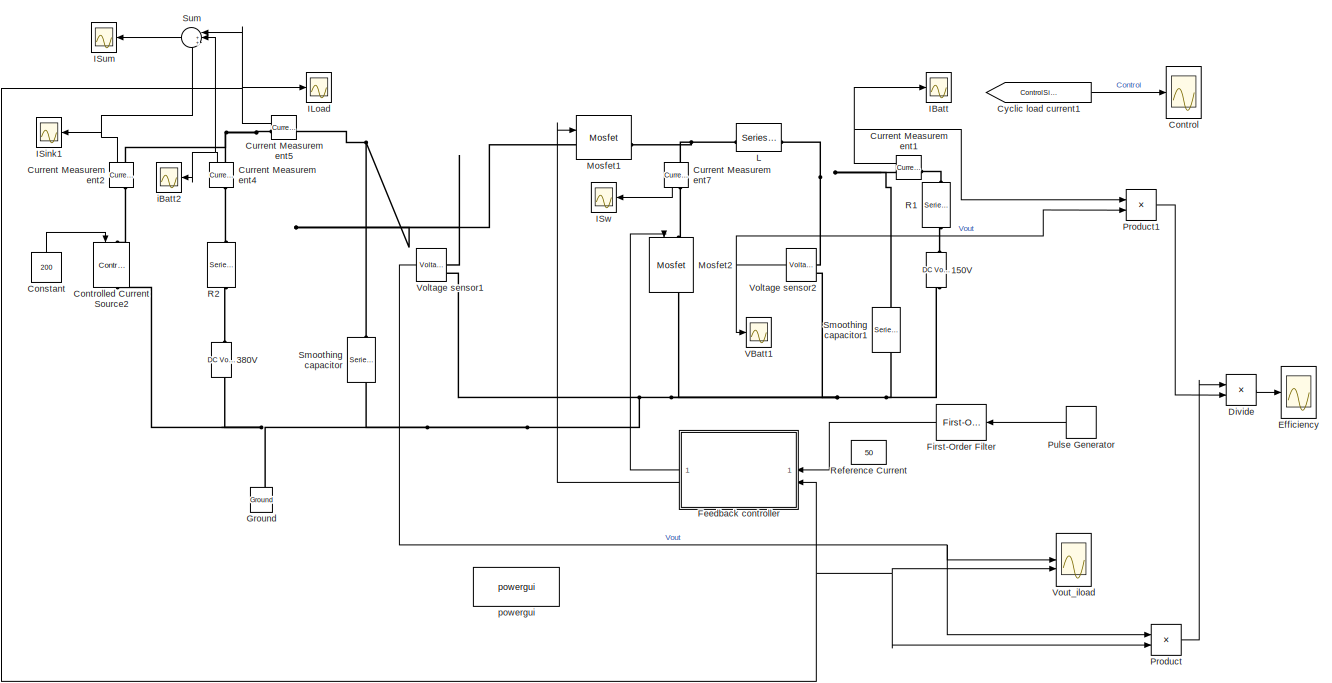
[diagram: root canvas - part 1/2, center side, full height]
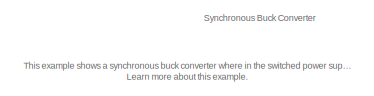
[diagram: root canvas - part 2/2, top right region]
MODEL slx_8a318281f69f
KIND model
CONFIG AbsTol = auto
CONFIG EnableMultiTasking = on
CONFIG FixedStep = auto
CONFIG MaxStep = 1e-4
CONFIG MinStep = auto
CONFIG RelTol = 1e-4
CONFIG SampleTimeConstraint = Unconstrained
CONFIG SolverName = ode15s
CONFIG StartTime = 0.0
CONFIG StopTime = 10
BLOCK [Reference] 150V  REF=spsDCVoltageSourceLib/DC Voltage Source
  NameLocation = right
  SourceBlock = spsDCVoltageSourceLib/DC Voltage Source
  SourceType = DC Voltage Source
BLOCK [Reference] 380V  REF=spsDCVoltageSourceLib/DC Voltage Source
  NameLocation = right
  SourceBlock = spsDCVoltageSourceLib/DC Voltage Source
  SourceType = DC Voltage Source
BLOCK [Constant] Constant
  NameLocation = right
  Value = 200
BLOCK [Scope] Control
  ActiveDisplayYMaximum = 0.023182348178801094
  ActiveDisplayYMinimum = -0.0024647053532001208
  DataLoggingDecimateData = on
  DataLoggingDecimation = 1
  DataLoggingSaveFormat = Array
  DataLoggingVariableName = Control
  Floating = off
  GraphicalSettings = {"Style":{"BackgroundColor":[0.12941176470588237,0.12941176470588237,0.12941176470588237],"AxesColor":[0.07058823529411765,0.07058823529411765,0.07058823529411765],"LabelsColor":[0.8509803921568627,0.8509803921568627,0.8509803921568627],"PreserveColors":false,"Visible":[true],"LineStyle":["-"],"LineWidth":[1.5],"BarWidth":[0.9],"LineColor":["auto"],"LineFaceAlpha":[1],"LineEdgeAlpha":[1],"Marker":...<+2013ch>
  MultipleDisplayCache = [{"MaxYLimMag":0.023182348178801094,"MaxYLimReal":0.023182348178801094,"MinYLimMag":0,"MinYLimReal":-0.0024647053532001208,"PlotAsMagnitudePhase":false,"ShowGrid":true,"ShowLegend":false,"Title":"%<SignalLabel>","YLabel":""}]
  NumInputPorts = 1
  ScopeFrameLocation = window
  TimeSpan = 0.01
  WasSavedAsWebScope = on
  WindowPosition = [690.000000,269.000000,489.000000,261.000000,]
BLOCK [Reference] Controlled Current Source2  REF=spsControlledCurrentSourceLib/Controlled Current Source
  LibrarySourceBlock = sps_lib/Sources/Controlled Current Source
  NameLocation = top
  SourceBlock = spsControlledCurrentSourceLib/Controlled Current Source
  SourceType = Controlled Current Source
BLOCK [Reference] Current Measurement1  REF=spsCurrentMeasurementLib/Current Measurement
  SourceBlock = spsCurrentMeasurementLib/Current Measurement
  SourceType = Current Measurement
BLOCK [Reference] Current Measurement2  REF=spsCurrentMeasurementLib/Current Measurement
  NameLocation = left
  SourceBlock = spsCurrentMeasurementLib/Current Measurement
  SourceType = Current Measurement
BLOCK [Reference] Current Measurement4  REF=spsCurrentMeasurementLib/Current Measurement
  NameLocation = left
  SourceBlock = spsCurrentMeasurementLib/Current Measurement
  SourceType = Current Measurement
BLOCK [Reference] Current Measurement5  REF=spsCurrentMeasurementLib/Current Measurement
  SourceBlock = spsCurrentMeasurementLib/Current Measurement
  SourceType = Current Measurement
BLOCK [Reference] Current Measurement7  REF=spsCurrentMeasurementLib/Current Measurement
  NameLocation = right
  SourceBlock = spsCurrentMeasurementLib/Current Measurement
  SourceType = Current Measurement
BLOCK [From] Cyclic load current1
  GotoTag = ControlSignal
  TagVisibility = global
BLOCK [Product] Divide
  Inputs = */
BLOCK [Scope] Efficiency
  ActiveDisplayYMaximum = 0.023182348178801094
  ActiveDisplayYMinimum = -0.0024647053532001208
  DataLoggingDecimateData = on
  DataLoggingDecimation = 1
  DataLoggingSaveFormat = Array
  DataLoggingVariableName = Control1
  Floating = off
  GraphicalSettings = {"Style":{"BackgroundColor":[0.12941176470588237,0.12941176470588237,0.12941176470588237],"AxesColor":[0.07058823529411765,0.07058823529411765,0.07058823529411765],"LabelsColor":[0.8509803921568627,0.8509803921568627,0.8509803921568627],"PreserveColors":false,"Visible":[true],"LineStyle":["-"],"LineWidth":[1.5],"BarWidth":[0.9],"LineColor":["auto"],"LineFaceAlpha":[1],"LineEdgeAlpha":[1],"Marker":...<+2013ch>
  MultipleDisplayCache = [{"MaxYLimMag":0.023182348178801094,"MaxYLimReal":0.023182348178801094,"MinYLimMag":0,"MinYLimReal":-0.0024647053532001208,"PlotAsMagnitudePhase":false,"ShowGrid":true,"ShowLegend":false,"Title":"%<SignalLabel>","YLabel":""}]
  NumInputPorts = 1
  ScopeFrameLocation = window
  TimeSpan = 0.01
  WasSavedAsWebScope = on
  WindowPosition = [690.000000,269.000000,489.000000,261.000000,]
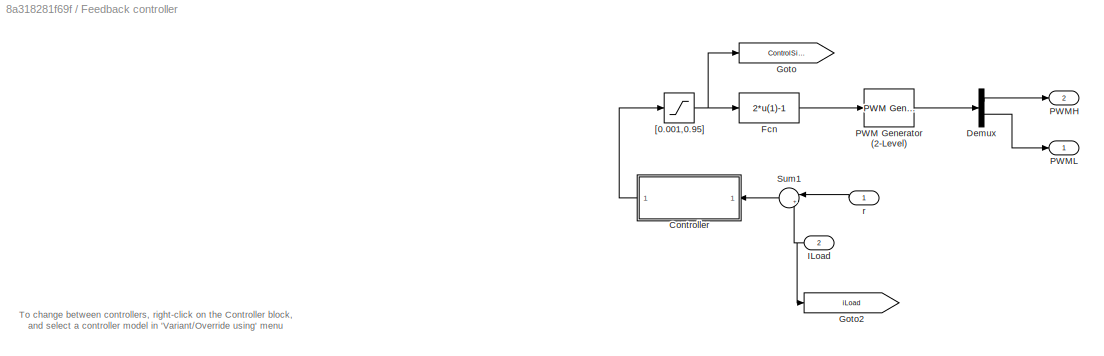
BLOCK [SubSystem] Feedback controller
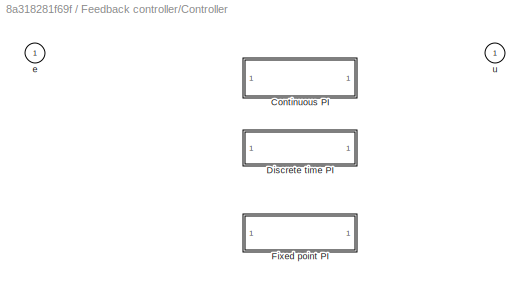
BLOCK [SubSystem] Feedback controller/Controller
  AttributesFormatString = %<BlockChoice>
  LabelModeActiveChoice = Variant1
  Variant = on
  VariantControlMode = label
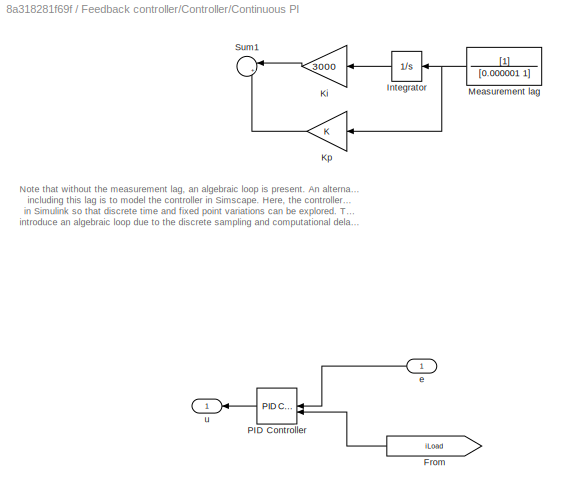
BLOCK [SubSystem] Feedback controller/Controller/Continuous PI
  VariantControl = Variant1
BLOCK [From] Feedback controller/Controller/Continuous PI/From
  GotoTag = iLoad
  TagVisibility = global
BLOCK [Integrator] Feedback controller/Controller/Continuous PI/Integrator
BLOCK [Gain] Feedback controller/Controller/Continuous PI/Ki
  Gain = 3000
BLOCK [Gain] Feedback controller/Controller/Continuous PI/Kp
BLOCK [TransferFcn] Feedback controller/Controller/Continuous PI/Measurement lag
  Denominator = [0.000001 1]
BLOCK [Reference] Feedback controller/Controller/Continuous PI/PID Controller  REF=slpidlib/PID Controller
  LibrarySourceBlock = simulink/Continuous/PID Controller
  SourceBlock = slpidlib/PID Controller
  SourceType = PID 1dof
BLOCK [Sum] Feedback controller/Controller/Continuous PI/Sum1
  InputSameDT = on
  Inputs = |++
  OutDataTypeStr = Inherit: Same as first input
  SaturateOnIntegerOverflow = on
BLOCK [Inport] Feedback controller/Controller/Continuous PI/e
BLOCK [Outport] Feedback controller/Controller/Continuous PI/u
  VectorParamsAs1DForOutWhenUnconnected = off
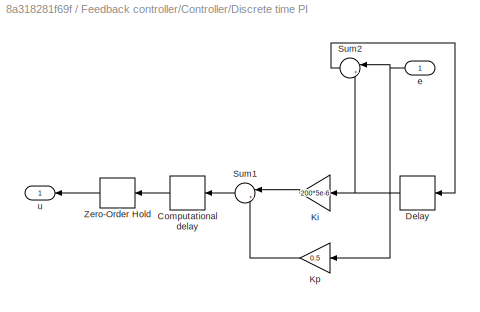
BLOCK [SubSystem] Feedback controller/Controller/Discrete time PI
  VariantControl = Variant2
BLOCK [Delay] Feedback controller/Controller/Discrete time PI/Computational delay
  DelayLength = 1
  InputPortMap = u0
  SampleTime = 5e-6
BLOCK [Delay] Feedback controller/Controller/Discrete time PI/Delay
  DelayLength = 1
  InputPortMap = u0
  SampleTime = 5e-6
BLOCK [Gain] Feedback controller/Controller/Discrete time PI/Ki
  Gain = 200*5e-6
BLOCK [Gain] Feedback controller/Controller/Discrete time PI/Kp
  Gain = 0.5
BLOCK [Sum] Feedback controller/Controller/Discrete time PI/Sum1
  InputSameDT = on
  Inputs = |++
  OutDataTypeStr = Inherit: Same as first input
  SaturateOnIntegerOverflow = on
BLOCK [Sum] Feedback controller/Controller/Discrete time PI/Sum2
  InputSameDT = on
  Inputs = |++
  OutDataTypeStr = Inherit: Same as first input
  SaturateOnIntegerOverflow = on
BLOCK [ZeroOrderHold] Feedback controller/Controller/Discrete time PI/Zero-Order Hold
  SampleTime = 5e-6
BLOCK [Inport] Feedback controller/Controller/Discrete time PI/e
BLOCK [Outport] Feedback controller/Controller/Discrete time PI/u
  VectorParamsAs1DForOutWhenUnconnected = off
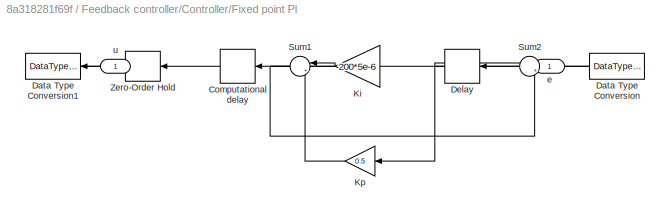
BLOCK [SubSystem] Feedback controller/Controller/Fixed point PI
  MinMaxOverflowLogging = MinMaxAndOverflow
  VariantControl = Variant3
BLOCK [Delay] Feedback controller/Controller/Fixed point PI/Computational delay
  DelayLength = 1
  InputPortMap = u0
  SampleTime = 5e-6
BLOCK [DataTypeConversion] Feedback controller/Controller/Fixed point PI/Data Type Conversion
  OutDataTypeStr = fixdt(1,16,11)
  RndMeth = Nearest
  SaturateOnIntegerOverflow = off
BLOCK [DataTypeConversion] Feedback controller/Controller/Fixed point PI/Data Type Conversion1
  OutDataTypeStr = double
  RndMeth = Nearest
  SaturateOnIntegerOverflow = off
BLOCK [Delay] Feedback controller/Controller/Fixed point PI/Delay
  DelayLength = 1
  InputPortMap = u0
  SampleTime = 5e-6
BLOCK [Gain] Feedback controller/Controller/Fixed point PI/Ki
  Gain = 200*5e-6
  OutDataTypeStr = fixdt(1,16,13)
  RndMeth = Nearest
BLOCK [Gain] Feedback controller/Controller/Fixed point PI/Kp
  Gain = 0.5
  OutDataTypeStr = fixdt(1,16,9)
  RndMeth = Nearest
BLOCK [Sum] Feedback controller/Controller/Fixed point PI/Sum1
  Inputs = |++
  SaturateOnIntegerOverflow = on
BLOCK [Sum] Feedback controller/Controller/Fixed point PI/Sum2
  InputSameDT = on
  Inputs = |++
  OutDataTypeStr = Inherit: Same as first input
  SaturateOnIntegerOverflow = on
BLOCK [ZeroOrderHold] Feedback controller/Controller/Fixed point PI/Zero-Order Hold
  SampleTime = 5e-6
BLOCK [Inport] Feedback controller/Controller/Fixed point PI/e
BLOCK [Outport] Feedback controller/Controller/Fixed point PI/u
  VectorParamsAs1DForOutWhenUnconnected = off
BLOCK [Inport] Feedback controller/Controller/e
BLOCK [Outport] Feedback controller/Controller/u
  VectorParamsAs1DForOutWhenUnconnected = off
BLOCK [Demux] Feedback controller/Demux
  Outputs = 2
BLOCK [Fcn] Feedback controller/Fcn
  Expr = 2*u(1)-1
BLOCK [Goto] Feedback controller/Goto
  GotoTag = ControlSignal
  TagVisibility = global
BLOCK [Goto] Feedback controller/Goto2
  GotoTag = iLoad
  TagVisibility = global
BLOCK [Inport] Feedback controller/ILoad
  Port = 2
BLOCK [Reference] Feedback controller/PWM Generator (2-Level)  REF=spsPWMGenerator2LevelLib/PWM Generator
(2-Level)
  SourceBlock = spsPWMGenerator2LevelLib/PWM Generator\n(2-Level)
  SourceType = PWM Generator (2-Level)
BLOCK [Outport] Feedback controller/PWMH
  Port = 2
  VectorParamsAs1DForOutWhenUnconnected = off
BLOCK [Outport] Feedback controller/PWML
  VectorParamsAs1DForOutWhenUnconnected = off
BLOCK [Sum] Feedback controller/Sum1
  InputSameDT = on
  Inputs = |+-
  OutDataTypeStr = Inherit: Same as first input
  SaturateOnIntegerOverflow = on
BLOCK [Saturate] Feedback controller/[0.001,0.95]
  LowerLimit = 0.0001
  UpperLimit = 0.95
BLOCK [Inport] Feedback controller/r
BLOCK [Reference] First-Order Filter  REF=spsFirstOrderFilterLib/First-Order
Filter
  LibrarySourceBlock = sps_lib/Control/Filters/First-Order\nFilter
  SourceBlock = spsFirstOrderFilterLib/First-Order\nFilter
  SourceType = First-Order Filter
BLOCK [Reference] Ground  REF=spsGroundLib/Ground
  NameLocation = left
  SourceBlock = spsGroundLib/Ground
  SourceType = Ground
BLOCK [Scope] IBatt
  ActiveDisplayYMaximum = 16926.559366246598
  ActiveDisplayYMinimum = -4410.7984256590225
  DataLogging = on
  DataLoggingDecimateData = on
  DataLoggingDecimation = 1
  DataLoggingSaveFormat = Array
  DataLoggingVariableName = Isrc_sps1
  Floating = off
  GraphicalSettings = {"Style":{"BackgroundColor":[0.12941176470588237,0.12941176470588237,0.12941176470588237],"AxesColor":[0.07058823529411765,0.07058823529411765,0.07058823529411765],"LabelsColor":[0.8509803921568627,0.8509803921568627,0.8509803921568627],"PreserveColors":false,"Visible":[true],"LineStyle":["-"],"LineWidth":[1.5],"BarWidth":[0.9],"LineColor":["auto"],"LineFaceAlpha":[1],"LineEdgeAlpha":[1],"Marker":...<+2027ch>  <repeated x4 — deduplicated; at blocks: IBatt, ILoad, ISw, VBatt1>
  MultipleDisplayCache = [{"MaxYLimMag":16926.559366246598,"MaxYLimReal":16926.559366246598,"MinYLimMag":0,"MinYLimReal":-4410.7984256590225,"PlotAsMagnitudePhase":false,"ShowGrid":true,"ShowLegend":false,"Title":"%<SignalLabel>","YLabel":""}]  <repeated x3 — deduplicated; at blocks: IBatt, ISw, VBatt1>
  NumInputPorts = 1
  ScopeFrameLocation = window
  TimeSpan = 0.01
  WasSavedAsWebScope = on
  WindowPosition = [712.000000,515.000000,488.000000,351.000000,]
BLOCK [Scope] ILoad
  ActiveDisplayYMaximum = 1093.0850139818504
  ActiveDisplayYMinimum = -119.68929460234355
  DataLogging = on
  DataLoggingDecimateData = on
  DataLoggingDecimation = 1
  DataLoggingSaveFormat = Array
  DataLoggingVariableName = Isrc_sps
  Floating = off
  MultipleDisplayCache = [{"MaxYLimMag":1093.0850139818504,"MaxYLimReal":1093.0850139818504,"MinYLimMag":0,"MinYLimReal":-119.68929460234355,"PlotAsMagnitudePhase":false,"ShowGrid":true,"ShowLegend":false,"Title":"%<SignalLabel>","YLabel":""}]
  NumInputPorts = 1
  ScopeFrameLocation = window
  TimeSpan = 0.01
  WasSavedAsWebScope = on
  WindowPosition = [712.000000,515.000000,488.000000,351.000000,]
BLOCK [Scope] ISink1
  ActiveDisplayYMaximum = 112.5
  ActiveDisplayYMinimum = -12.499999999999996
  DataLogging = on
  DataLoggingDecimateData = on
  DataLoggingDecimation = 1
  DataLoggingSaveFormat = Array
  DataLoggingVariableName = Isrc_sps3
  Floating = off
  GraphicalSettings = {"Style":{"BackgroundColor":[0.12941176470588237,0.12941176470588237,0.12941176470588237],"AxesColor":[0.07058823529411765,0.07058823529411765,0.07058823529411765],"LabelsColor":[0.8509803921568627,0.8509803921568627,0.8509803921568627],"PreserveColors":false,"Visible":[true],"LineStyle":["-"],"LineWidth":[1.5],"BarWidth":[0.9],"LineColor":["auto"],"LineFaceAlpha":[1],"LineEdgeAlpha":[1],"Marker":...<+1973ch>
  MultipleDisplayCache = [{"MaxYLimMag":112.5,"MaxYLimReal":112.5,"MinYLimMag":0,"MinYLimReal":-12.499999999999996,"PlotAsMagnitudePhase":false,"ShowGrid":true,"ShowLegend":false,"Title":"%<SignalLabel>","YLabel":""}]
  NumInputPorts = 1
  ScopeFrameLocation = window
  TimeSpan = 0.01
  WasSavedAsWebScope = on
  WindowPosition = [712.000000,515.000000,488.000000,351.000000,]
BLOCK [Scope] ISum
  ActiveDisplayYMaximum = 1
  ActiveDisplayYMinimum = -1
  DataLogging = on
  DataLoggingDecimateData = on
  DataLoggingDecimation = 1
  DataLoggingSaveFormat = Array
  DataLoggingVariableName = Isrc_sps4
  Floating = off
  GraphicalSettings = {"Style":{"BackgroundColor":[0.12941176470588237,0.12941176470588237,0.12941176470588237],"AxesColor":[0.07058823529411765,0.07058823529411765,0.07058823529411765],"LabelsColor":[0.8509803921568627,0.8509803921568627,0.8509803921568627],"PreserveColors":false,"Visible":[true],"LineStyle":["-"],"LineWidth":[1.5],"BarWidth":[0.9],"LineColor":["auto"],"LineFaceAlpha":[1],"LineEdgeAlpha":[1],"Marker":...<+1891ch>
  MultipleDisplayCache = [{"MaxYLimMag":1,"MaxYLimReal":1,"MinYLimMag":0,"MinYLimReal":-1,"PlotAsMagnitudePhase":false,"ShowGrid":true,"ShowLegend":false,"Title":"%<SignalLabel>","YLabel":""}]
  NumInputPorts = 1
  ScopeFrameLocation = window
  TimeSpan = 0.01
  WasSavedAsWebScope = on
  WindowPosition = [712.000000,515.000000,488.000000,351.000000,]
BLOCK [Scope] ISw
  ActiveDisplayYMaximum = 16926.559366246598
  ActiveDisplayYMinimum = -4410.7984256590225
  DataLogging = on
  DataLoggingDecimateData = on
  DataLoggingDecimation = 1
  DataLoggingSaveFormat = Array
  DataLoggingVariableName = Isrc_sps6
  Floating = off
  NumInputPorts = 1
  ScopeFrameLocation = window
  TimeSpan = 0.01
  WasSavedAsWebScope = on
  WindowPosition = [712.000000,515.000000,488.000000,351.000000,]
BLOCK [Reference] L  REF=spsSeriesRLCBranchLib/Series RLC Branch
  NameLocation = top
  SourceBlock = spsSeriesRLCBranchLib/Series RLC Branch
  SourceType = Series RLC Branch
BLOCK [Reference] Mosfet1  REF=spsMosfetLib/Mosfet
  SourceBlock = spsMosfetLib/Mosfet
  SourceType = Mosfet
BLOCK [Reference] Mosfet2  REF=spsMosfetLib/Mosfet
  NameLocation = left
  SourceBlock = spsMosfetLib/Mosfet
  SourceType = Mosfet
BLOCK [Product] Product
BLOCK [Product] Product1
BLOCK [DiscretePulseGenerator] Pulse Generator
  Amplitude = 50
  Period = 0.5
  PulseType = Time based
  PulseWidth = 50
BLOCK [Reference] R1  REF=spsSeriesRLCBranchLib/Series RLC Branch
  NameLocation = left
  SourceBlock = spsSeriesRLCBranchLib/Series RLC Branch
  SourceType = Series RLC Branch
BLOCK [Reference] R2  REF=spsSeriesRLCBranchLib/Series RLC Branch
  NameLocation = left
  SourceBlock = spsSeriesRLCBranchLib/Series RLC Branch
  SourceType = Series RLC Branch
BLOCK [Constant] Reference Current
  Value = 50
BLOCK [Reference] Smoothing capacitor  REF=spsSeriesRLCBranchLib/Series RLC Branch
  NameLocation = left
  SourceBlock = spsSeriesRLCBranchLib/Series RLC Branch
  SourceType = Series RLC Branch
BLOCK [Reference] Smoothing capacitor1  REF=spsSeriesRLCBranchLib/Series RLC Branch
  NameLocation = left
  SourceBlock = spsSeriesRLCBranchLib/Series RLC Branch
  SourceType = Series RLC Branch
BLOCK [Sum] Sum
  Inputs = |+++
BLOCK [Scope] VBatt1
  ActiveDisplayYMaximum = 16926.559366246598
  ActiveDisplayYMinimum = -4410.7984256590225
  DataLogging = on
  DataLoggingDecimateData = on
  DataLoggingDecimation = 1
  DataLoggingSaveFormat = Array
  DataLoggingVariableName = Isrc_sps5
  Floating = off
  NumInputPorts = 1
  ScopeFrameLocation = window
  TimeSpan = 0.01
  WasSavedAsWebScope = on
  WindowPosition = [712.000000,515.000000,488.000000,351.000000,]
BLOCK [Reference] Voltage sensor1  REF=spsVoltageMeasurementLib/Voltage Measurement
  SourceBlock = spsVoltageMeasurementLib/Voltage Measurement
  SourceType = Voltage Measurement
BLOCK [Reference] Voltage sensor2  REF=spsVoltageMeasurementLib/Voltage Measurement
  SourceBlock = spsVoltageMeasurementLib/Voltage Measurement
  SourceType = Voltage Measurement
BLOCK [Scope] Vout_iload
  ActiveDisplayYMaximum = 380.24989171675594
  ActiveDisplayYMinimum = 377.75074454909316
  DataLoggingDecimateData = on
  DataLoggingDecimation = 1
  DataLoggingSaveFormat = Array
  DataLoggingVariableName = Vout_sps
  Floating = off
  GraphicalSettings = {"Style":{"BackgroundColor":[0.12941176470588237,0.12941176470588237,0.12941176470588237],"AxesColor":[0.07058823529411765,0.07058823529411765,0.07058823529411765],"LabelsColor":[0.8509803921568627,0.8509803921568627,0.8509803921568627],"PreserveColors":false,"Visible":[true,true],"LineStyle":["-","-"],"LineWidth":[1.5,1.5],"BarWidth":[0.9,0.9],"LineColor":["auto","auto"],"LineFaceAlpha":[1,1],"Li...<+2459ch>
  LayoutDimensionsString = [2 1]
  MultipleDisplayCache = [{"MaxYLimMag":380.24989171675594,"MaxYLimReal":380.24989171675594,"MinYLimMag":377.75074454909316,"MinYLimReal":377.75074454909316,"PlotAsMagnitudePhase":false,"ShowGrid":true,"ShowLegend":false,"Title":"%<SignalLabel>","YLabel":""},{"MaxYLimMag":224.98917167558739,"MaxYLimReal":224.98917167558739,"MinYLimMag":0,"MinYLimReal":-24.925545090692133,"PlotAsMagnitudePhase":false,"ShowGrid":true,"ShowL...<+51ch>
  NumInputPorts = 2
  ScopeFrameLocation = window
  TimeSpan = 0.01
  WasSavedAsWebScope = on
  WindowPosition = [1537.000000,49.000000,1536.000000,793.000000,]
BLOCK [Scope] iBatt2
  ActiveDisplayYMaximum = 112.5
  ActiveDisplayYMinimum = -12.499999999999996
  DataLogging = on
  DataLoggingDecimateData = on
  DataLoggingDecimation = 1
  DataLoggingSaveFormat = Array
  DataLoggingVariableName = Isrc_sps2
  Floating = off
  GraphicalSettings = {"Style":{"BackgroundColor":[0.12941176470588237,0.12941176470588237,0.12941176470588237],"AxesColor":[0.07058823529411765,0.07058823529411765,0.07058823529411765],"LabelsColor":[0.8509803921568627,0.8509803921568627,0.8509803921568627],"PreserveColors":false,"Visible":[true],"LineStyle":["-"],"LineWidth":[1.5],"BarWidth":[0.9],"LineColor":["auto"],"LineFaceAlpha":[1],"LineEdgeAlpha":[1],"Marker":...<+1973ch>
  MultipleDisplayCache = [{"MaxYLimMag":112.5,"MaxYLimReal":112.5,"MinYLimMag":0,"MinYLimReal":-12.499999999999996,"PlotAsMagnitudePhase":false,"ShowGrid":true,"ShowLegend":false,"Title":"%<SignalLabel>","YLabel":""}]
  NumInputPorts = 1
  ScopeFrameLocation = window
  TimeSpan = 0.01
  WasSavedAsWebScope = on
  WindowPosition = [712.000000,515.000000,488.000000,351.000000,]
BLOCK [Reference] powergui  REF=spspowerguiLib/powergui
  Priority = 1
  SourceBlock = spspowerguiLib/powergui
  SourceType = PSB option menu block
ANNOTATION (root): This example shows a synchronous buck converter where in the switched power supply converts a 30V DC supply into a regulated 15V DC supply. Learn more about this example.
ANNOTATION (root): Synchronous Buck Converter
ANNOTATION Feedback controller: To change between controllers, right-click on the Controller block, and select a controller model in 'Variant/Override using' menu
ANNOTATION Feedback controller/Controller/Continuous PI: Note that without the measurement lag, an algebraic loop is present. An alternative to including this lag is to model the controller in Simscape. Here, the controller is implemented in Simulink so that discrete time and fixed point variations can be explored. These do not introduce an algebraic loop due to the discrete sampling and computational delay.
LINE Constant:1 -> Controlled Current Source2:1
NET Current Measurement1:1 -> IBatt:1, Product1:1
NET Current Measurement2:1 -> ISink1:1, Sum:3
NET Current Measurement4:1 -> Sum:2, iBatt2:1
NET Current Measurement5:1 -> Feedback controller:2, ILoad:1, Product:2, Sum:1, Vout_iload:2
LINE Current Measurement7:1 -> ISw:1
LINE Cyclic load current1:1 -> Control:1
LINE Divide:1 -> Efficiency:1
LINE Feedback controller/Controller/Continuous PI/From:1 -> Feedback controller/Controller/Continuous PI/PID Controller:2
LINE Feedback controller/Controller/Continuous PI/Integrator:1 -> Feedback controller/Controller/Continuous PI/Ki:1
LINE Feedback controller/Controller/Continuous PI/Ki:1 -> Feedback controller/Controller/Continuous PI/Sum1:1
LINE Feedback controller/Controller/Continuous PI/Kp:1 -> Feedback controller/Controller/Continuous PI/Sum1:2
NET Feedback controller/Controller/Continuous PI/Measurement lag:1 -> Feedback controller/Controller/Continuous PI/Integrator:1, Feedback controller/Controller/Continuous PI/Kp:1
LINE Feedback controller/Controller/Continuous PI/PID Controller:1 -> Feedback controller/Controller/Continuous PI/u:1
LINE Feedback controller/Controller/Continuous PI/e:1 -> Feedback controller/Controller/Continuous PI/PID Controller:1
LINE Feedback controller/Controller/Discrete time PI/Computational delay:1 -> Feedback controller/Controller/Discrete time PI/Zero-Order Hold:1
NET Feedback controller/Controller/Discrete time PI/Delay:1 -> Feedback controller/Controller/Discrete time PI/Ki:1, Feedback controller/Controller/Discrete time PI/Sum2:2
LINE Feedback controller/Controller/Discrete time PI/Ki:1 -> Feedback controller/Controller/Discrete time PI/Sum1:1
LINE Feedback controller/Controller/Discrete time PI/Kp:1 -> Feedback controller/Controller/Discrete time PI/Sum1:2
LINE Feedback controller/Controller/Discrete time PI/Sum1:1 -> Feedback controller/Controller/Discrete time PI/Computational delay:1
LINE Feedback controller/Controller/Discrete time PI/Sum2:1 -> Feedback controller/Controller/Discrete time PI/Delay:1
LINE Feedback controller/Controller/Discrete time PI/Zero-Order Hold:1 -> Feedback controller/Controller/Discrete time PI/u:1
NET Feedback controller/Controller/Discrete time PI/e:1 -> Feedback controller/Controller/Discrete time PI/Kp:1, Feedback controller/Controller/Discrete time PI/Sum2:1
LINE Feedback controller/Controller/Fixed point PI/Computational delay:1 -> Feedback controller/Controller/Fixed point PI/Zero-Order Hold:1
LINE Feedback controller/Controller/Fixed point PI/Data Type Conversion1:1 -> Feedback controller/Controller/Fixed point PI/u:1
NET Feedback controller/Controller/Fixed point PI/Data Type Conversion:1 -> Feedback controller/Controller/Fixed point PI/Kp:1, Feedback controller/Controller/Fixed point PI/Sum2:1
NET Feedback controller/Controller/Fixed point PI/Delay:1 -> Feedback controller/Controller/Fixed point PI/Ki:1, Feedback controller/Controller/Fixed point PI/Sum2:2
LINE Feedback controller/Controller/Fixed point PI/Ki:1 -> Feedback controller/Controller/Fixed point PI/Sum1:1
LINE Feedback controller/Controller/Fixed point PI/Kp:1 -> Feedback controller/Controller/Fixed point PI/Sum1:2
LINE Feedback controller/Controller/Fixed point PI/Sum1:1 -> Feedback controller/Controller/Fixed point PI/Computational delay:1
LINE Feedback controller/Controller/Fixed point PI/Sum2:1 -> Feedback controller/Controller/Fixed point PI/Delay:1
LINE Feedback controller/Controller/Fixed point PI/Zero-Order Hold:1 -> Feedback controller/Controller/Fixed point PI/Data Type Conversion1:1
LINE Feedback controller/Controller/Fixed point PI/e:1 -> Feedback controller/Controller/Fixed point PI/Data Type Conversion:1
LINE Feedback controller/Controller:1 -> Feedback controller/[0.001,0.95]:1
LINE Feedback controller/Demux:1 -> Feedback controller/PWMH:1
LINE Feedback controller/Demux:2 -> Feedback controller/PWML:1
LINE Feedback controller/Fcn:1 -> Feedback controller/PWM Generator (2-Level):1
NET Feedback controller/ILoad:1 -> Feedback controller/Goto2:1, Feedback controller/Sum1:2
LINE Feedback controller/PWM Generator (2-Level):1 -> Feedback controller/Demux:1
LINE Feedback controller/Sum1:1 -> Feedback controller/Controller:1
NET Feedback controller/[0.001,0.95]:1 -> Feedback controller/Fcn:1, Feedback controller/Goto:1
LINE Feedback controller/r:1 -> Feedback controller/Sum1:1
LINE Feedback controller:1 -> Mosfet2:1
LINE Feedback controller:2 -> Mosfet1:1
LINE First-Order Filter:1 -> Feedback controller:1
LINE Product1:1 -> Divide:2
LINE Product:1 -> Divide:1
LINE Pulse Generator:1 -> First-Order Filter:1
LINE Sum:1 -> ISum:1
NET Voltage sensor1:1 -> Product:1, Vout_iload:1
NET Voltage sensor2:1 -> Product1:2, VBatt1:1
PNET net1: 150V:LConn1 -- 380V:LConn1 -- Controlled Current Source2:RConn1 -- Ground:LConn1 -- Mosfet2:RConn1 -- Smoothing capacitor1:RConn1 -- Smoothing capacitor:RConn1 -- Voltage sensor1:LConn2 -- Voltage sensor2:LConn2
PLINE 150V:RConn1 -- R1:RConn1
PLINE 380V:RConn1 -- R2:RConn1
PLINE Controlled Current Source2:LConn1 -- Current Measurement2:LConn1
PLINE Current Measurement1:LConn1 -- R1:LConn1
PNET net2: Current Measurement1:RConn1 -- L:RConn1 -- Smoothing capacitor1:LConn1 -- Voltage sensor2:LConn1
PNET net3: Current Measurement2:RConn1 -- Current Measurement4:RConn1 -- Current Measurement5:RConn1
PLINE Current Measurement4:LConn1 -- R2:LConn1
PNET net4: Current Measurement5:LConn1 -- Mosfet1:LConn1 -- Smoothing capacitor:LConn1 -- Voltage sensor1:LConn1
PNET net5: Current Measurement7:LConn1 -- L:LConn1 -- Mosfet1:RConn1
PLINE Current Measurement7:RConn1 -- Mosfet2:LConn1
note: NET lines group one-source signal fan-out (src -> all destinations, sorted); 1:1 wires keep LINE; PNET lines group multi-terminal physical nets as a canonical sorted terminal list (undirected conserving connections); 2-terminal nets keep the pairwise PLINE form
